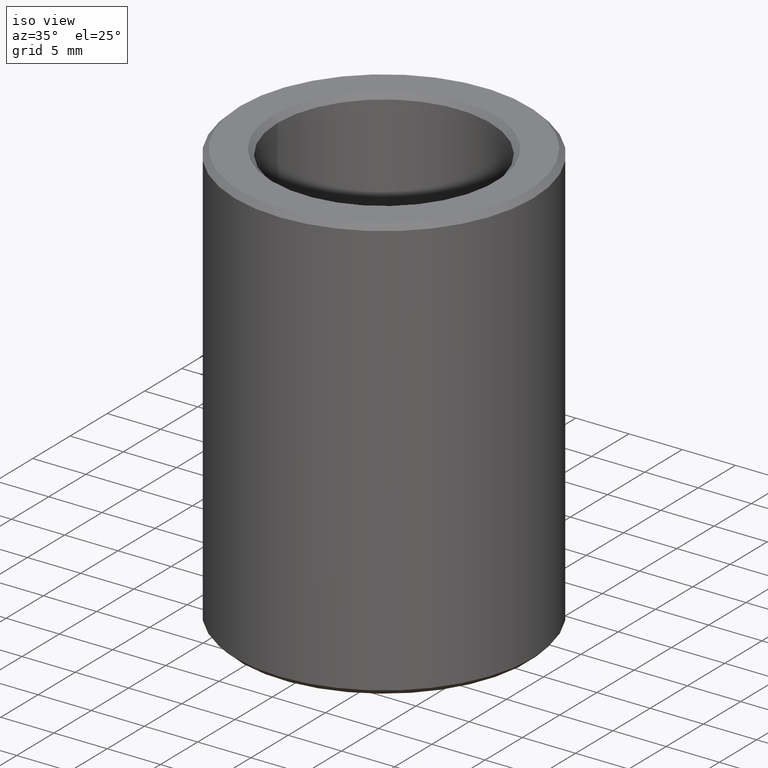
[diagram: clean part render]
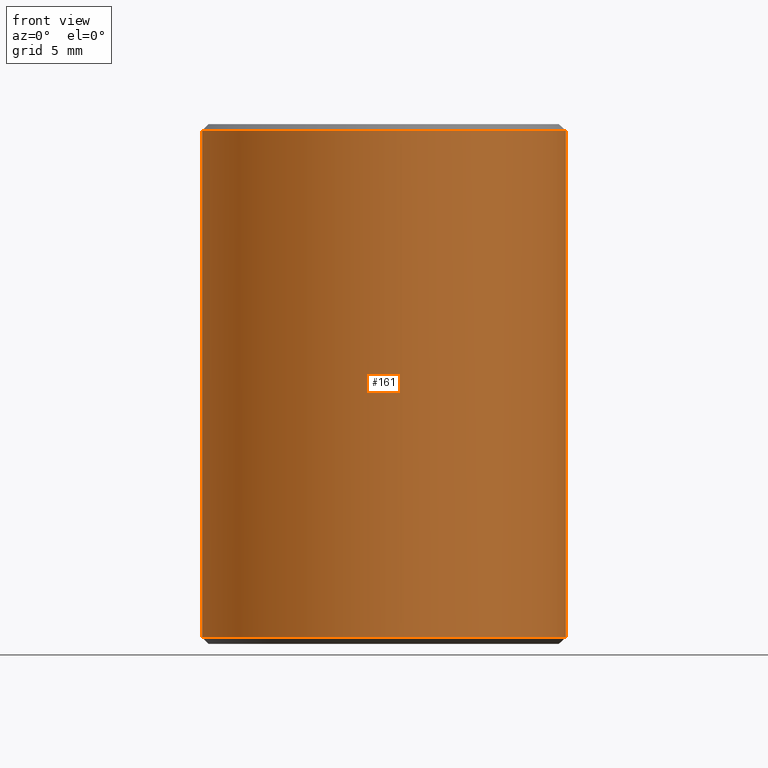
[diagram: tour spotlight — one face highlighted and labeled with its STEP entity id]
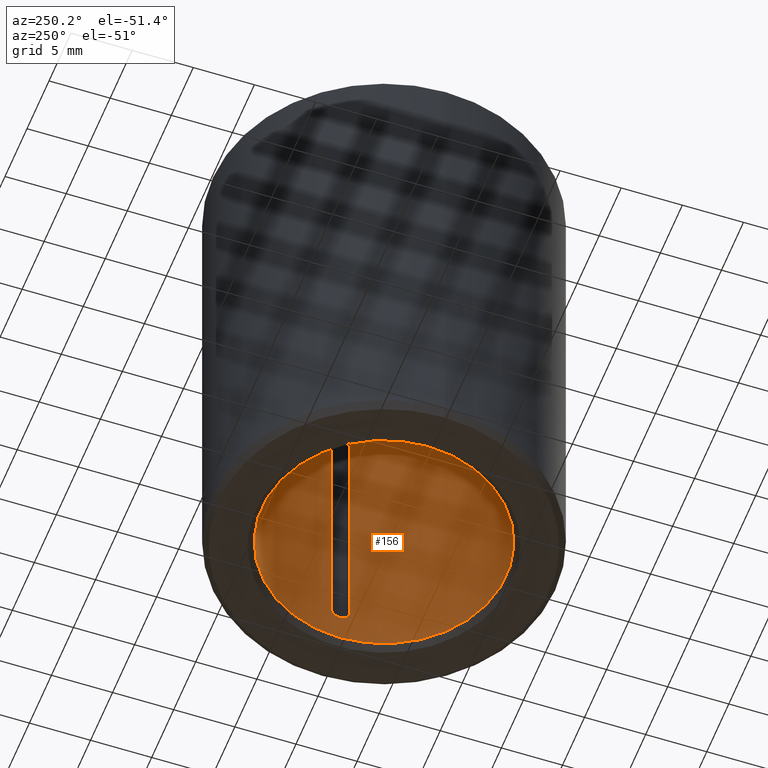
[diagram: tour spotlight — one face highlighted and labeled with its STEP entity id]
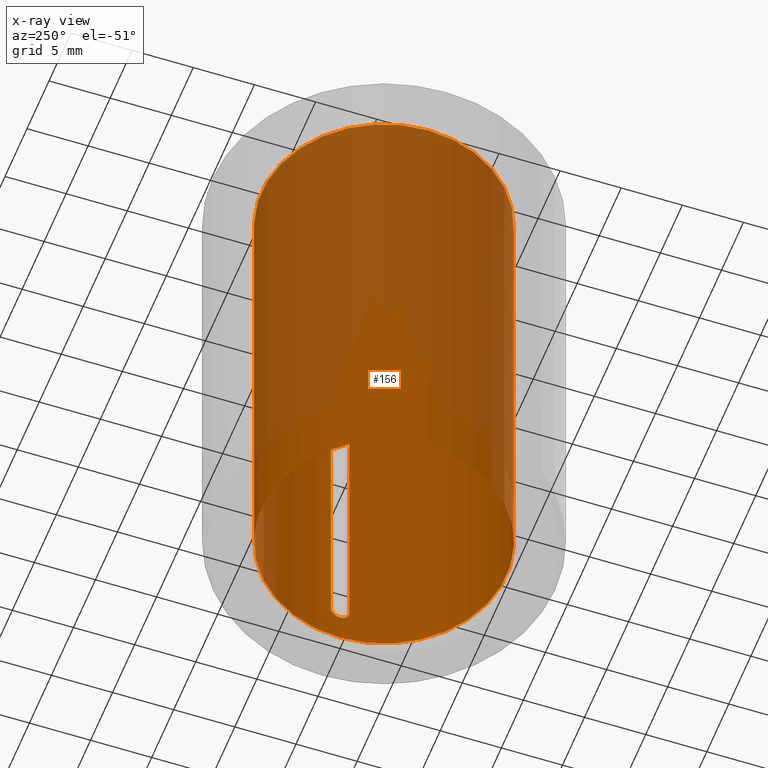
[diagram: x-ray of the same camera — body ghosted, this tour face saturated]
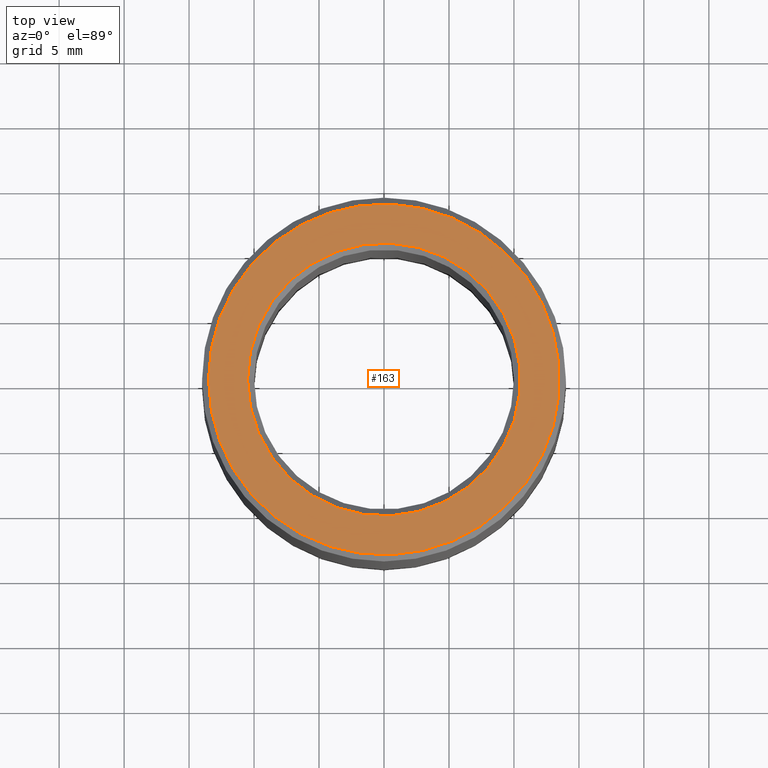
[diagram: tour spotlight — one face highlighted and labeled with its STEP entity id]
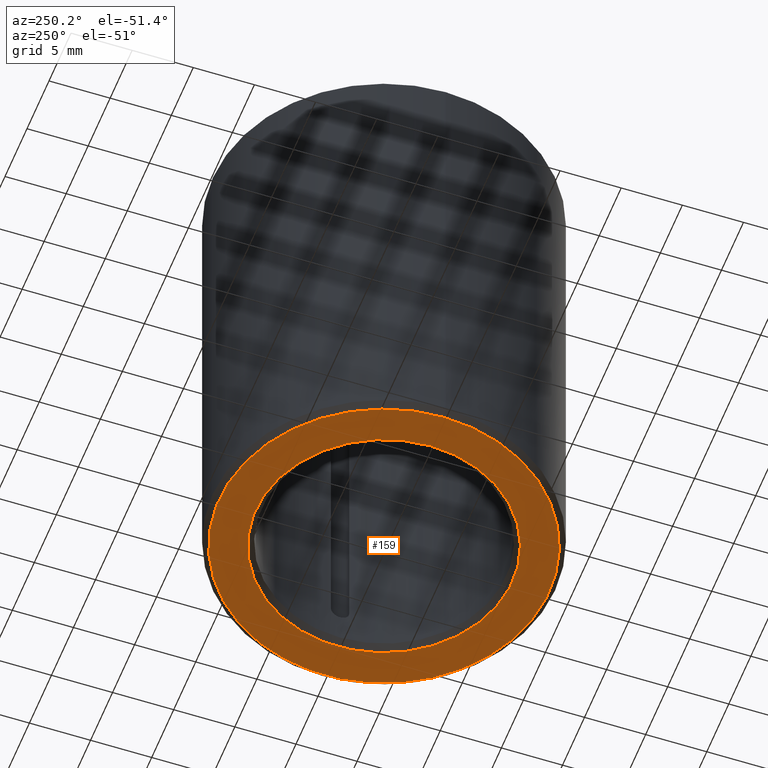
[diagram: tour spotlight — one face highlighted and labeled with its STEP entity id]
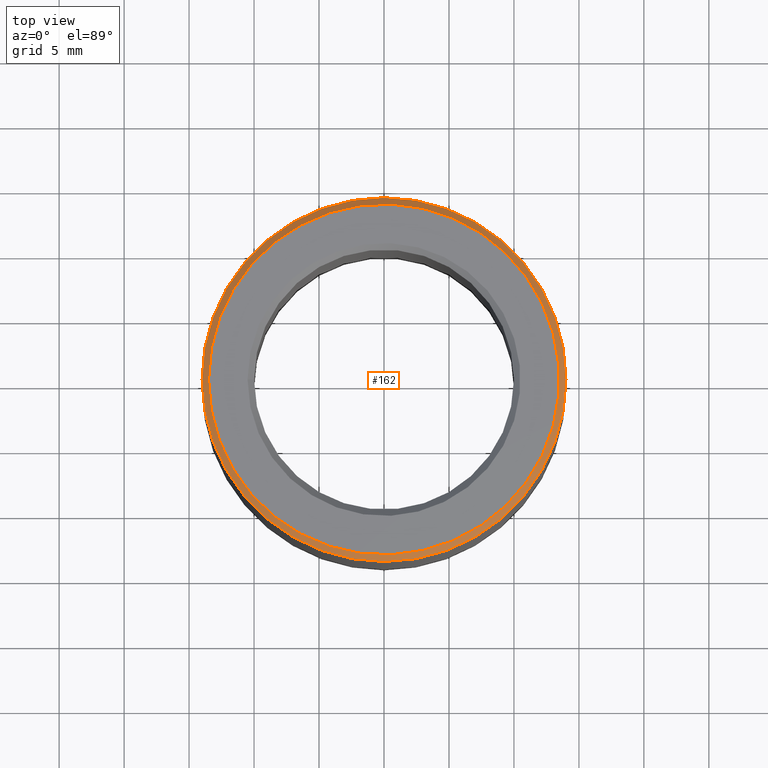
[diagram: tour spotlight — one face highlighted and labeled with its STEP entity id]
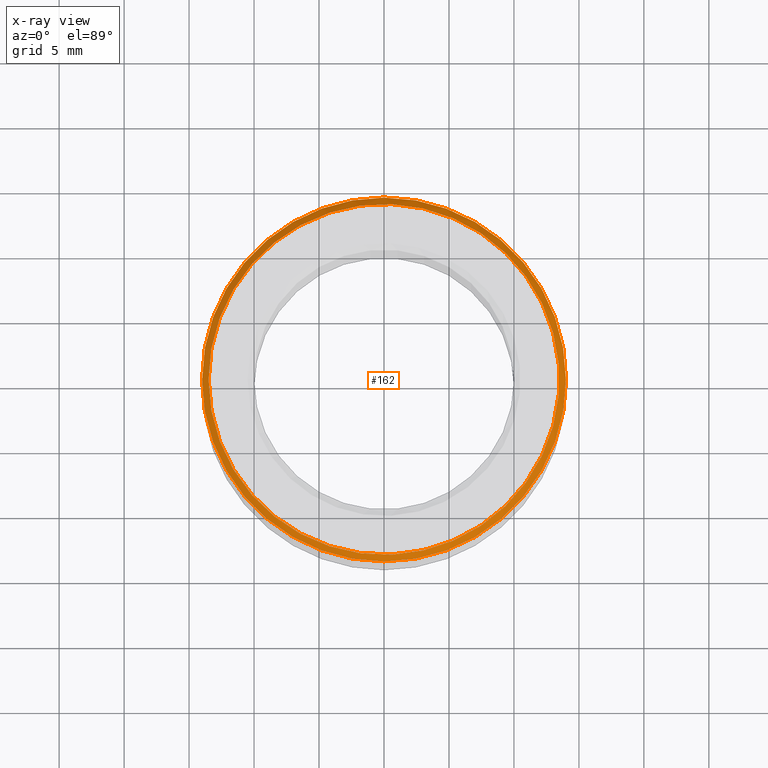
[diagram: x-ray of the same camera — body ghosted, this tour face saturated]
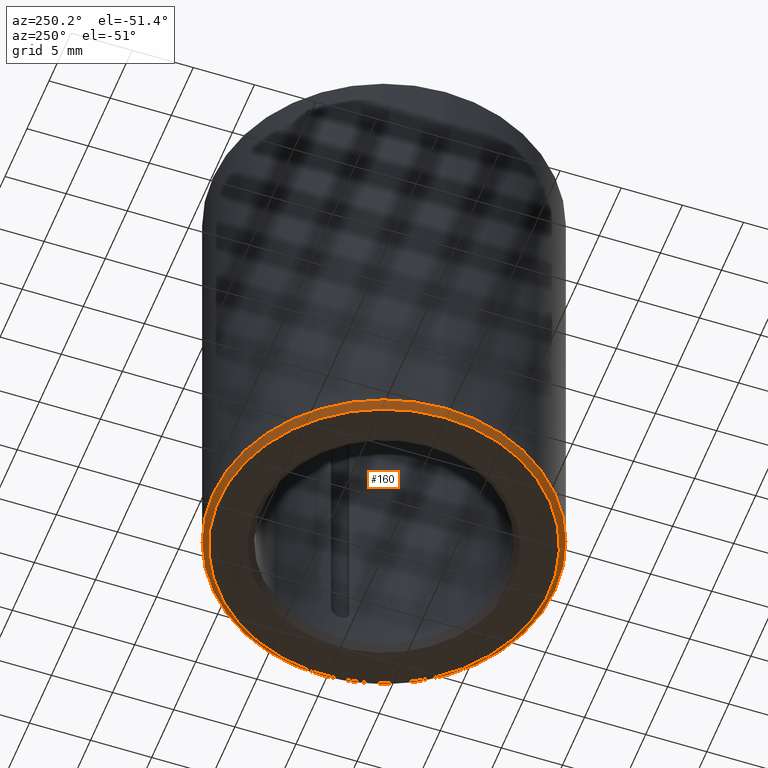
[diagram: tour spotlight — one face highlighted and labeled with its STEP entity id]
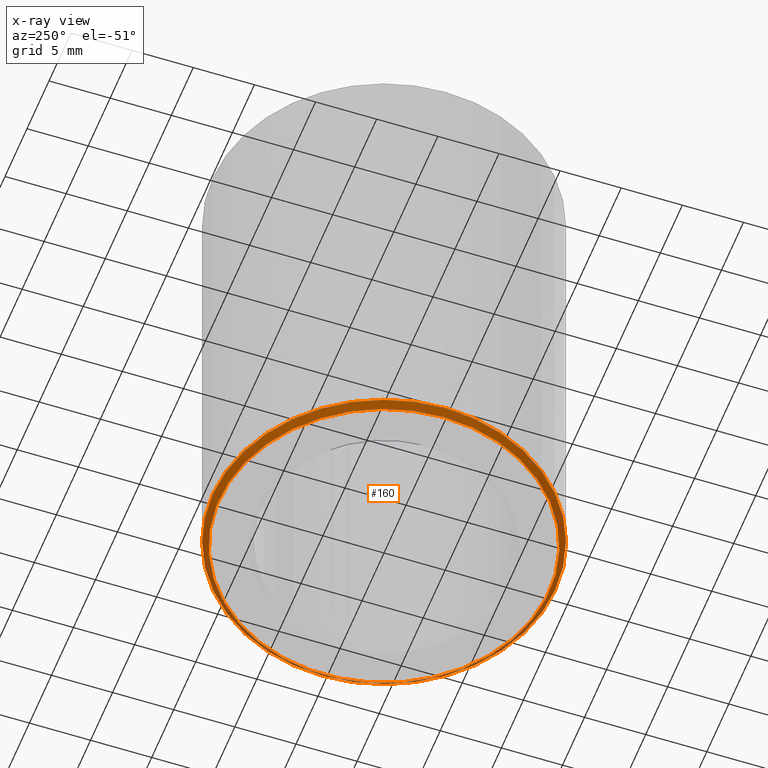
[diagram: x-ray of the same camera — body ghosted, this tour face saturated]
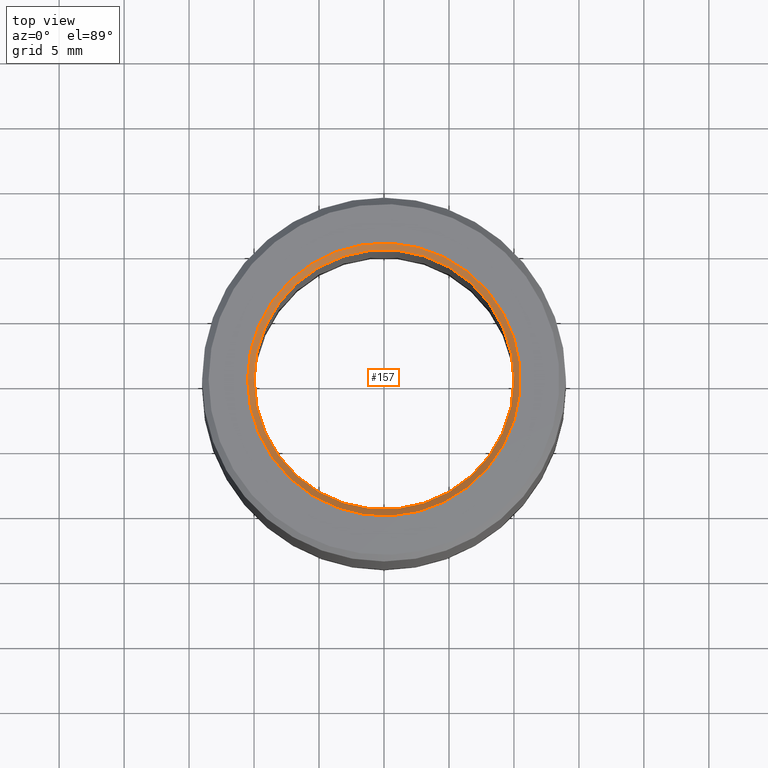
[diagram: tour spotlight — one face highlighted and labeled with its STEP entity id]
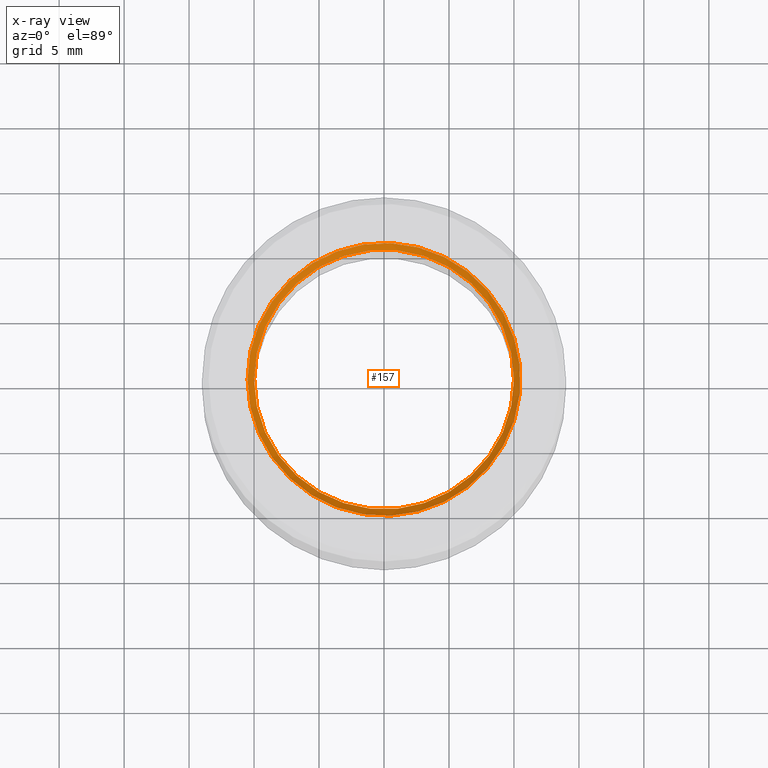
[diagram: x-ray of the same camera — body ghosted, this tour face saturated]
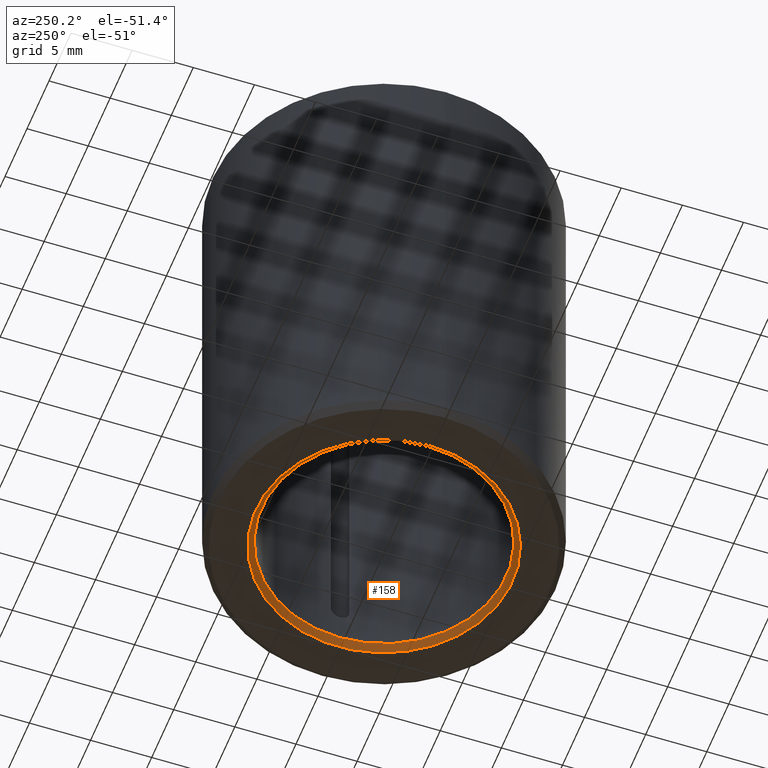
[diagram: tour spotlight — one face highlighted and labeled with its STEP entity id]
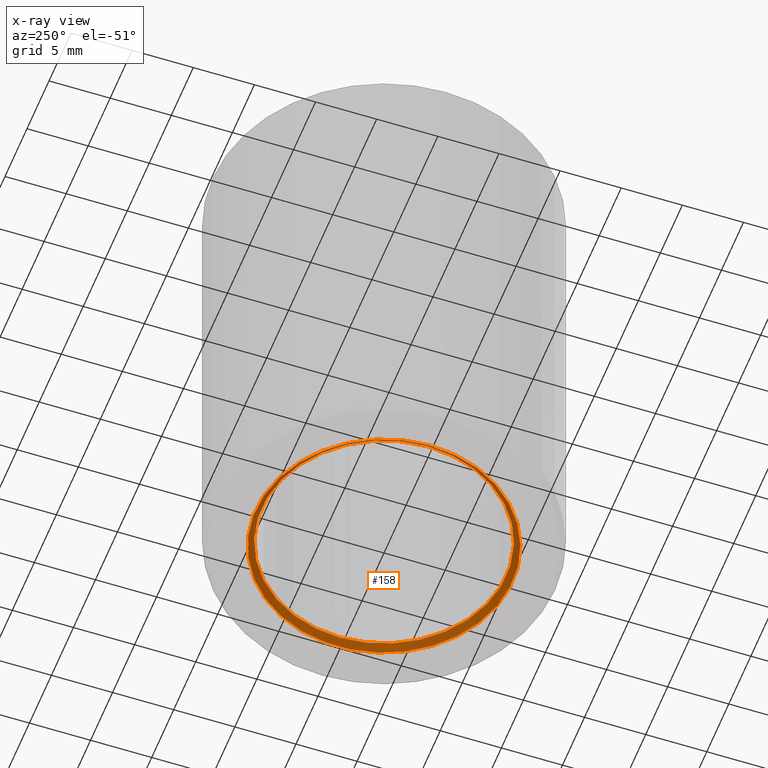
[diagram: x-ray of the same camera — body ghosted, this tour face saturated]
A machine part: a face-by-face anatomy tour. The part has 15 B-rep faces; the first image is the clean iso view, then the 8 largest visible faces are spotlighted one at a time (largest first), each with its STEP entity span.

Face 1 — front view, entity #161. In plain terms, the highlighted cylindrical surface (bore or boss wall) has radius 14 mm, axis along (-0, 0, -1).
Definition (entity closure, byte-faithful):
#161=ADVANCED_FACE('',(#192,#193),#194,.T.);
#192=FACE_OUTER_BOUND('',#232,.T.);
#193=FACE_OUTER_BOUND('',#233,.T.);
#194=CYLINDRICAL_SURFACE('',#234,0.014);
#232=EDGE_LOOP('',(#299));
#233=EDGE_LOOP('',(#300));
#234=AXIS2_PLACEMENT_3D('',#301,#302,#303);
#299=ORIENTED_EDGE('',*,*,#355,.T.);
#300=ORIENTED_EDGE('',*,*,#354,.F.);
#301=CARTESIAN_POINT('',(0.0,0.0,-1.0842021724855E-019));
#302=DIRECTION('',(0.0,-6.12323399573677E-017,-1.0));
#303=DIRECTION('',(0.0,1.0,-6.12323399573677E-017));
#354=EDGE_CURVE('',#389,#389,#390,.T.);
#355=EDGE_CURVE('',#391,#391,#392,.T.);
#389=VERTEX_POINT('',#460);
#390=CIRCLE('',#461,0.014);
#391=VERTEX_POINT('',#462);
#392=CIRCLE('',#463,0.014);
#460=CARTESIAN_POINT('',(0.0,0.014,0.0005));
#461=AXIS2_PLACEMENT_3D('',#498,#499,#500);
#462=CARTESIAN_POINT('',(0.0,0.014,0.0395));
#463=AXIS2_PLACEMENT_3D('',#501,#502,#503);
#498=CARTESIAN_POINT('',(0.0,0.0,0.0005));
#499=DIRECTION('',(0.0,-6.12323399573677E-017,-1.0));
#500=DIRECTION('',(0.0,1.0,-6.12323399573677E-017));
#501=CARTESIAN_POINT('',(0.0,0.0,0.0395));
#502=DIRECTION('',(0.0,-6.12323399573677E-017,-1.0));
#503=DIRECTION('',(0.0,1.0,-6.12323399573677E-017));

Face 2 — auxiliary view, entity #156. An x-ray twin of the same camera follows (body ghosted, this face saturated) — the face is partly hidden behind the body. In plain terms, the highlighted cylindrical surface (bore or boss wall) has radius 10 mm, axis along (-0, 0, -1).
Definition (entity closure, byte-faithful):
#156=ADVANCED_FACE('',(#176,#177,#178),#179,.F.);
#176=FACE_OUTER_BOUND('',#216,.T.);
#177=FACE_OUTER_BOUND('',#217,.T.);
#178=FACE_BOUND('',#218,.T.);
#179=CYLINDRICAL_SURFACE('',#219,0.01);
#216=EDGE_LOOP('',(#270));
#217=EDGE_LOOP('',(#271));
#218=EDGE_LOOP('',(#272,#273,#274,#275));
#219=AXIS2_PLACEMENT_3D('',#276,#277,#278);
#270=ORIENTED_EDGE('',*,*,#348,.T.);
#271=ORIENTED_EDGE('',*,*,#349,.F.);
#272=ORIENTED_EDGE('',*,*,#350,.T.);
#273=ORIENTED_EDGE('',*,*,#347,.T.);
#274=ORIENTED_EDGE('',*,*,#344,.T.);
#275=ORIENTED_EDGE('',*,*,#341,.T.);
#276=CARTESIAN_POINT('',(0.0,0.0,-1.0842021724855E-019));
#277=DIRECTION('',(0.0,-6.12323399573677E-017,-1.0));
#278=DIRECTION('',(0.0,1.0,-6.12323399573677E-017));
#341=EDGE_CURVE('',#361,#365,#367,.T.);
#344=EDGE_CURVE('',#369,#361,#372,.T.);
#347=EDGE_CURVE('',#374,#369,#377,.T.);
#348=EDGE_CURVE('',#378,#378,#379,.T.);
#349=EDGE_CURVE('',#380,#380,#381,.T.);
#350=EDGE_CURVE('',#365,#374,#382,.F.);
#361=VERTEX_POINT('',#399);
#365=VERTEX_POINT('',#404);
#367=B_SPLINE_CURVE_WITH_KNOTS('',3,(#407,#408,#409,#410,#411,#412,#413,#414,#415,#416,#417,#418,#419,#420),.UNSPECIFIED.,.F.,.F.,(4,2,2,2,2,2,4),(0.0,0.00029314530910994,0.000586290618219879,0.00117258123643976,0.0014657265455497,0.00175887185465964,0.00234516247287952),.UNSPECIFIED.);
#369=VERTEX_POINT('',#422);
#372=LINE('',#427,#428);
#374=VERTEX_POINT('',#430);
#377=B_SPLINE_CURVE_WITH_KNOTS('',3,(#434,#435,#436,#437,#438,#439,#440,#441,#442,#443,#444,#445,#446,#447),.UNSPECIFIED.,.F.,.F.,(4,2,2,2,2,2,4),(0.0,0.000293145309109937,0.000586290618219873,0.00117258123643975,0.00146572654554968,0.00175887185465962,0.00234516247287951),.UNSPECIFIED.);
#378=VERTEX_POINT('',#448);
#379=CIRCLE('',#449,0.01);
#380=VERTEX_POINT('',#450);
#381=CIRCLE('',#451,0.01);
#382=LINE('',#452,#453);
#399=CARTESIAN_POINT('',(-0.00075,-0.00997183533758956,0.00375));
#404=CARTESIAN_POINT('',(0.00075,-0.00997183533758956,0.00375));
#407=CARTESIAN_POINT('',(-0.00075,-0.00997183533758956,0.00375));
#408=CARTESIAN_POINT('',(-0.00075,-0.00997183533758956,0.00365087528467168));
#409=CARTESIAN_POINT('',(-0.000730475795910075,-0.00997335595511548,0.00355361065737769));
#410=CARTESIAN_POINT('',(-0.00065518805669987,-0.0099785846945449,0.00337198905748123));
#411=CARTESIAN_POINT('',(-0.000599480080025492,-0.00998225526719024,0.00328881731726457));
#412=CARTESIAN_POINT('',(-0.000392000292515642,-0.00999327384361332,0.00308134530325637));
#413=CARTESIAN_POINT('',(-0.000196222549634054,-0.00999998979246334,0.00300013610052145));
#414=CARTESIAN_POINT('',(9.73299347138204E-005,-0.0100000050834186,0.00299993222106924));
#415=CARTESIAN_POINT('',(0.000195648058993087,-0.00999849872872351,0.00301932980094186));
#416=CARTESIAN_POINT('',(0.000377287448069184,-0.00999329320958826,0.00309440005772662));
#417=CARTESIAN_POINT('',(0.000459903820221092,-0.00998966514636002,0.00314934238886248));
#418=CARTESIAN_POINT('',(0.000670063160067619,-0.00997851193327625,0.00335920629456741));
#419=CARTESIAN_POINT('',(0.00075,-0.00997183533758956,0.00355175082650246));
#420=CARTESIAN_POINT('',(0.00075,-0.00997183533758956,0.00375));
#422=CARTESIAN_POINT('',(-0.00075,-0.00997183533758956,0.03625));
#427=CARTESIAN_POINT('',(-0.00075,-0.00997183533758956,4.09604408644787E-019));
#428=VECTOR('',#477,1.0);
#430=CARTESIAN_POINT('',(0.00075,-0.00997183533758956,0.03625));
#434=CARTESIAN_POINT('',(0.00075,-0.00997183533758956,0.03625));
#435=CARTESIAN_POINT('',(0.00075,-0.00997183533758956,0.0363491247153283));
#436=CARTESIAN_POINT('',(0.000730475795910077,-0.00997335595511548,0.0364463893426223));
#437=CARTESIAN_POINT('',(0.000655188056699873,-0.0099785846945449,0.0366280109425188));
#438=CARTESIAN_POINT('',(0.000599480080025491,-0.00998225526719024,0.0367111826827354));
#439=CARTESIAN_POINT('',(0.00039200029251565,-0.00999327384361332,0.0369186546967436));
#440=CARTESIAN_POINT('',(0.000196222549634047,-0.00999998979246334,0.0369998638994785));
#441=CARTESIAN_POINT('',(-9.73299347138095E-005,-0.0100000050834186,0.0370000677789308));
#442=CARTESIAN_POINT('',(-0.000195648058993085,-0.00999849872872351,0.0369806701990581));
#443=CARTESIAN_POINT('',(-0.000377287448069171,-0.00999329320958826,0.0369055999422734));
#444=CARTESIAN_POINT('',(-0.000459903820221087,-0.00998966514636002,0.0368506576111375));
#445=CARTESIAN_POINT('',(-0.0006700631600676,-0.00997851193327625,0.0366407937054326));
#446=CARTESIAN_POINT('',(-0.00075,-0.00997183533758956,0.0364482491734976));
#447=CARTESIAN_POINT('',(-0.00075,-0.00997183533758956,0.03625));
#448=CARTESIAN_POINT('',(0.0,0.01,0.0005));
#449=AXIS2_PLACEMENT_3D('',#482,#483,#484);
#450=CARTESIAN_POINT('',(0.0,0.01,0.0395));
#451=AXIS2_PLACEMENT_3D('',#485,#486,#487);
#452=CARTESIAN_POINT('',(0.00075,-0.00997183533758956,5.02178594141626E-019));
#453=VECTOR('',#488,1.0);
#477=DIRECTION('',(0.0,-6.12323399573677E-017,-1.0));
#482=CARTESIAN_POINT('',(0.0,0.0,0.0005));
#483=DIRECTION('',(0.0,-6.12323399573677E-017,-1.0));
#484=DIRECTION('',(0.0,1.0,-6.12323399573677E-017));
#485=CARTESIAN_POINT('',(0.0,0.0,0.0395));
#486=DIRECTION('',(0.0,-6.12323399573677E-017,-1.0));
#487=DIRECTION('',(0.0,1.0,-6.12323399573677E-017));
#488=DIRECTION('',(0.0,-6.12323399573677E-017,-1.0));

Face 3 — top view, entity #163. In plain terms, the highlighted planar face has unit normal (0, -0, 1).
Definition (entity closure, byte-faithful):
#163=ADVANCED_FACE('',(#198,#199),#200,.T.);
#198=FACE_BOUND('',#238,.T.);
#199=FACE_OUTER_BOUND('',#239,.T.);
#200=PLANE('',#240);
#238=EDGE_LOOP('',(#309));
#239=EDGE_LOOP('',(#310));
#240=AXIS2_PLACEMENT_3D('',#311,#312,#313);
#309=ORIENTED_EDGE('',*,*,#351,.T.);
#310=ORIENTED_EDGE('',*,*,#356,.F.);
#311=CARTESIAN_POINT('',(0.0135,0.0,0.04));
#312=DIRECTION('',(0.0,6.12323399573677E-017,1.0));
#313=DIRECTION('',(0.0,-1.0,6.12323399573677E-017));
#351=EDGE_CURVE('',#383,#383,#384,.T.);
#356=EDGE_CURVE('',#393,#393,#394,.T.);
#383=VERTEX_POINT('',#454);
#384=CIRCLE('',#455,0.0105);
#393=VERTEX_POINT('',#464);
#394=CIRCLE('',#465,0.0135);
#454=CARTESIAN_POINT('',(0.0,0.0105,0.04));
#455=AXIS2_PLACEMENT_3D('',#489,#490,#491);
#464=CARTESIAN_POINT('',(0.0,0.0135,0.04));
#465=AXIS2_PLACEMENT_3D('',#504,#505,#506);
#489=CARTESIAN_POINT('',(0.0,0.0,0.04));
#490=DIRECTION('',(0.0,-6.12323399573677E-017,-1.0));
#491=DIRECTION('',(0.0,1.0,-6.12323399573677E-017));
#504=CARTESIAN_POINT('',(0.0,0.0,0.04));
#505=DIRECTION('',(0.0,-6.12323399573677E-017,-1.0));
#506=DIRECTION('',(0.0,1.0,-6.12323399573677E-017));

Face 4 — auxiliary view, entity #159. In plain terms, the highlighted planar face has unit normal (-0, 0, -1).
Definition (entity closure, byte-faithful):
#159=ADVANCED_FACE('',(#186,#187),#188,.T.);
#186=FACE_OUTER_BOUND('',#226,.T.);
#187=FACE_BOUND('',#227,.T.);
#188=PLANE('',#228);
#226=EDGE_LOOP('',(#289));
#227=EDGE_LOOP('',(#290));
#228=AXIS2_PLACEMENT_3D('',#291,#292,#293);
#289=ORIENTED_EDGE('',*,*,#353,.T.);
#290=ORIENTED_EDGE('',*,*,#352,.F.);
#291=CARTESIAN_POINT('',(0.0105,0.0,-2.22261445359529E-018));
#292=DIRECTION('',(0.0,-6.12323399573677E-017,-1.0));
#293=DIRECTION('',(0.0,1.0,-6.12323399573677E-017));
#352=EDGE_CURVE('',#385,#385,#386,.T.);
#353=EDGE_CURVE('',#387,#387,#388,.T.);
#385=VERTEX_POINT('',#456);
#386=CIRCLE('',#457,0.0105);
#387=VERTEX_POINT('',#458);
#388=CIRCLE('',#459,0.0135);
#456=CARTESIAN_POINT('',(0.0,0.0105,-3.02818434902047E-018));
#457=AXIS2_PLACEMENT_3D('',#492,#493,#494);
#458=CARTESIAN_POINT('',(0.0,0.0135,-2.88662071714692E-018));
#459=AXIS2_PLACEMENT_3D('',#495,#496,#497);
#492=CARTESIAN_POINT('',(0.0,0.0,-2.38524477946811E-018));
#493=DIRECTION('',(0.0,-6.12323399573677E-017,-1.0));
#494=DIRECTION('',(0.0,1.0,-6.12323399573677E-017));
#495=CARTESIAN_POINT('',(0.0,0.0,-2.05998412772246E-018));
#496=DIRECTION('',(0.0,-6.12323399573677E-017,-1.0));
#497=DIRECTION('',(0.0,1.0,-6.12323399573677E-017));

Face 5 — top view, entity #162. An x-ray twin of the same camera follows (body ghosted, this face saturated) — the face is partly hidden behind the body. In plain terms, the highlighted conical surface has half-angle 45 deg.
Definition (entity closure, byte-faithful):
#162=ADVANCED_FACE('',(#195,#196),#197,.T.);
#195=FACE_BOUND('',#235,.T.);
#196=FACE_OUTER_BOUND('',#236,.T.);
#197=CONICAL_SURFACE('',#237,0.014,0.785398163397448);
#235=EDGE_LOOP('',(#304));
#236=EDGE_LOOP('',(#305));
#237=AXIS2_PLACEMENT_3D('',#306,#307,#308);
#304=ORIENTED_EDGE('',*,*,#356,.T.);
#305=ORIENTED_EDGE('',*,*,#355,.F.);
#306=CARTESIAN_POINT('',(0.0,0.0,0.0395));
#307=DIRECTION('',(0.0,-6.12323399573677E-017,-1.0));
#308=DIRECTION('',(0.0,1.0,-6.12323399573677E-017));
#355=EDGE_CURVE('',#391,#391,#392,.T.);
#356=EDGE_CURVE('',#393,#393,#394,.T.);
#391=VERTEX_POINT('',#462);
#392=CIRCLE('',#463,0.014);
#393=VERTEX_POINT('',#464);
#394=CIRCLE('',#465,0.0135);
#462=CARTESIAN_POINT('',(0.0,0.014,0.0395));
#463=AXIS2_PLACEMENT_3D('',#501,#502,#503);
#464=CARTESIAN_POINT('',(0.0,0.0135,0.04));
#465=AXIS2_PLACEMENT_3D('',#504,#505,#506);
#501=CARTESIAN_POINT('',(0.0,0.0,0.0395));
#502=DIRECTION('',(0.0,-6.12323399573677E-017,-1.0));
#503=DIRECTION('',(0.0,1.0,-6.12323399573677E-017));
#504=CARTESIAN_POINT('',(0.0,0.0,0.04));
#505=DIRECTION('',(0.0,-6.12323399573677E-017,-1.0));
#506=DIRECTION('',(0.0,1.0,-6.12323399573677E-017));

Face 6 — auxiliary view, entity #160. An x-ray twin of the same camera follows (body ghosted, this face saturated) — the face is partly hidden behind the body. In plain terms, the highlighted conical surface has half-angle 45 deg.
Definition (entity closure, byte-faithful):
#160=ADVANCED_FACE('',(#189,#190),#191,.T.);
#189=FACE_OUTER_BOUND('',#229,.T.);
#190=FACE_BOUND('',#230,.T.);
#191=CONICAL_SURFACE('',#231,0.0135,0.785398163397432);
#229=EDGE_LOOP('',(#294));
#230=EDGE_LOOP('',(#295));
#231=AXIS2_PLACEMENT_3D('',#296,#297,#298);
#294=ORIENTED_EDGE('',*,*,#354,.T.);
#295=ORIENTED_EDGE('',*,*,#353,.F.);
#296=CARTESIAN_POINT('',(0.0,0.0,-2.05998412772246E-018));
#297=DIRECTION('',(-0.0,6.12323399573677E-017,1.0));
#298=DIRECTION('',(0.0,-1.0,6.12323399573677E-017));
#353=EDGE_CURVE('',#387,#387,#388,.T.);
#354=EDGE_CURVE('',#389,#389,#390,.T.);
#387=VERTEX_POINT('',#458);
#388=CIRCLE('',#459,0.0135);
#389=VERTEX_POINT('',#460);
#390=CIRCLE('',#461,0.014);
#458=CARTESIAN_POINT('',(0.0,0.0135,-2.88662071714692E-018));
#459=AXIS2_PLACEMENT_3D('',#495,#496,#497);
#460=CARTESIAN_POINT('',(0.0,0.014,0.0005));
#461=AXIS2_PLACEMENT_3D('',#498,#499,#500);
#495=CARTESIAN_POINT('',(0.0,0.0,-2.05998412772246E-018));
#496=DIRECTION('',(0.0,-6.12323399573677E-017,-1.0));
#497=DIRECTION('',(0.0,1.0,-6.12323399573677E-017));
#498=CARTESIAN_POINT('',(0.0,0.0,0.0005));
#499=DIRECTION('',(0.0,-6.12323399573677E-017,-1.0));
#500=DIRECTION('',(0.0,1.0,-6.12323399573677E-017));

Face 7 — top view, entity #157. An x-ray twin of the same camera follows (body ghosted, this face saturated) — the face is partly hidden behind the body. In plain terms, the highlighted conical surface has half-angle 45 deg.
Definition (entity closure, byte-faithful):
#157=ADVANCED_FACE('',(#180,#181),#182,.F.);
#180=FACE_BOUND('',#220,.T.);
#181=FACE_OUTER_BOUND('',#221,.T.);
#182=CONICAL_SURFACE('',#222,0.0105,0.785398163397448);
#220=EDGE_LOOP('',(#279));
#221=EDGE_LOOP('',(#280));
#222=AXIS2_PLACEMENT_3D('',#281,#282,#283);
#279=ORIENTED_EDGE('',*,*,#349,.T.);
#280=ORIENTED_EDGE('',*,*,#351,.F.);
#281=CARTESIAN_POINT('',(0.0,0.0,0.04));
#282=DIRECTION('',(-0.0,6.12323399573677E-017,1.0));
#283=DIRECTION('',(0.0,-1.0,6.12323399573677E-017));
#349=EDGE_CURVE('',#380,#380,#381,.T.);
#351=EDGE_CURVE('',#383,#383,#384,.T.);
#380=VERTEX_POINT('',#450);
#381=CIRCLE('',#451,0.01);
#383=VERTEX_POINT('',#454);
#384=CIRCLE('',#455,0.0105);
#450=CARTESIAN_POINT('',(0.0,0.01,0.0395));
#451=AXIS2_PLACEMENT_3D('',#485,#486,#487);
#454=CARTESIAN_POINT('',(0.0,0.0105,0.04));
#455=AXIS2_PLACEMENT_3D('',#489,#490,#491);
#485=CARTESIAN_POINT('',(0.0,0.0,0.0395));
#486=DIRECTION('',(0.0,-6.12323399573677E-017,-1.0));
#487=DIRECTION('',(0.0,1.0,-6.12323399573677E-017));
#489=CARTESIAN_POINT('',(0.0,0.0,0.04));
#490=DIRECTION('',(0.0,-6.12323399573677E-017,-1.0));
#491=DIRECTION('',(0.0,1.0,-6.12323399573677E-017));

Face 8 — auxiliary view, entity #158. An x-ray twin of the same camera follows (body ghosted, this face saturated) — the face is partly hidden behind the body. In plain terms, the highlighted conical surface has half-angle 45 deg.
Definition (entity closure, byte-faithful):
#158=ADVANCED_FACE('',(#183,#184),#185,.F.);
#183=FACE_OUTER_BOUND('',#223,.T.);
#184=FACE_BOUND('',#224,.T.);
#185=CONICAL_SURFACE('',#225,0.01,0.785398163397446);
#223=EDGE_LOOP('',(#284));
#224=EDGE_LOOP('',(#285));
#225=AXIS2_PLACEMENT_3D('',#286,#287,#288);
#284=ORIENTED_EDGE('',*,*,#352,.T.);
#285=ORIENTED_EDGE('',*,*,#348,.F.);
#286=CARTESIAN_POINT('',(0.0,0.0,0.0005));
#287=DIRECTION('',(0.0,-6.12323399573677E-017,-1.0));
#288=DIRECTION('',(0.0,1.0,-6.12323399573677E-017));
#348=EDGE_CURVE('',#378,#378,#379,.T.);
#352=EDGE_CURVE('',#385,#385,#386,.T.);
#378=VERTEX_POINT('',#448);
#379=CIRCLE('',#449,0.01);
#385=VERTEX_POINT('',#456);
#386=CIRCLE('',#457,0.0105);
#448=CARTESIAN_POINT('',(0.0,0.01,0.0005));
#449=AXIS2_PLACEMENT_3D('',#482,#483,#484);
#456=CARTESIAN_POINT('',(0.0,0.0105,-3.02818434902047E-018));
#457=AXIS2_PLACEMENT_3D('',#492,#493,#494);
#482=CARTESIAN_POINT('',(0.0,0.0,0.0005));
#483=DIRECTION('',(0.0,-6.12323399573677E-017,-1.0));
#484=DIRECTION('',(0.0,1.0,-6.12323399573677E-017));
#492=CARTESIAN_POINT('',(0.0,0.0,-2.38524477946811E-018));
#493=DIRECTION('',(0.0,-6.12323399573677E-017,-1.0));
#494=DIRECTION('',(0.0,1.0,-6.12323399573677E-017));